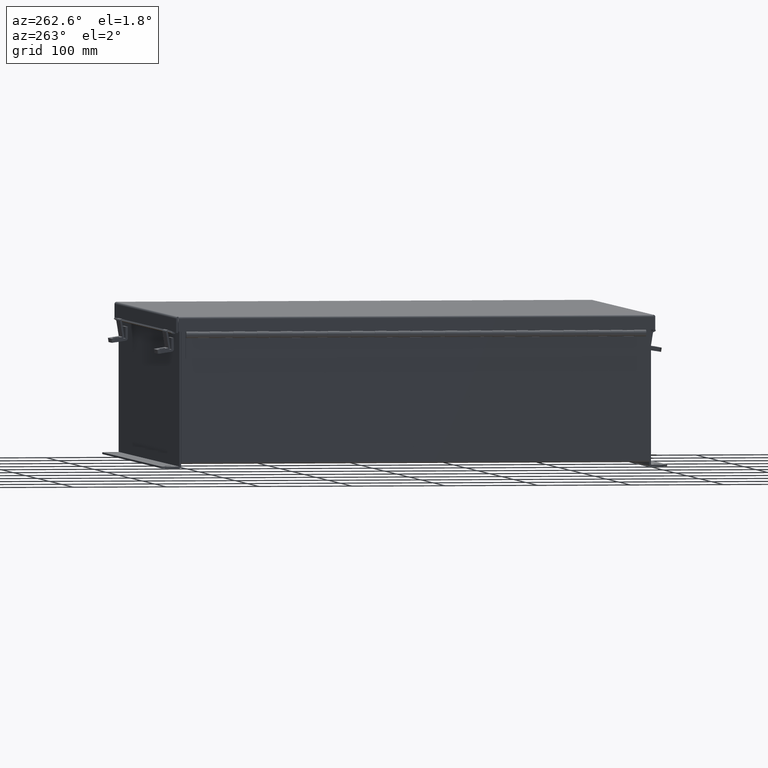
[diagram: clean part render]
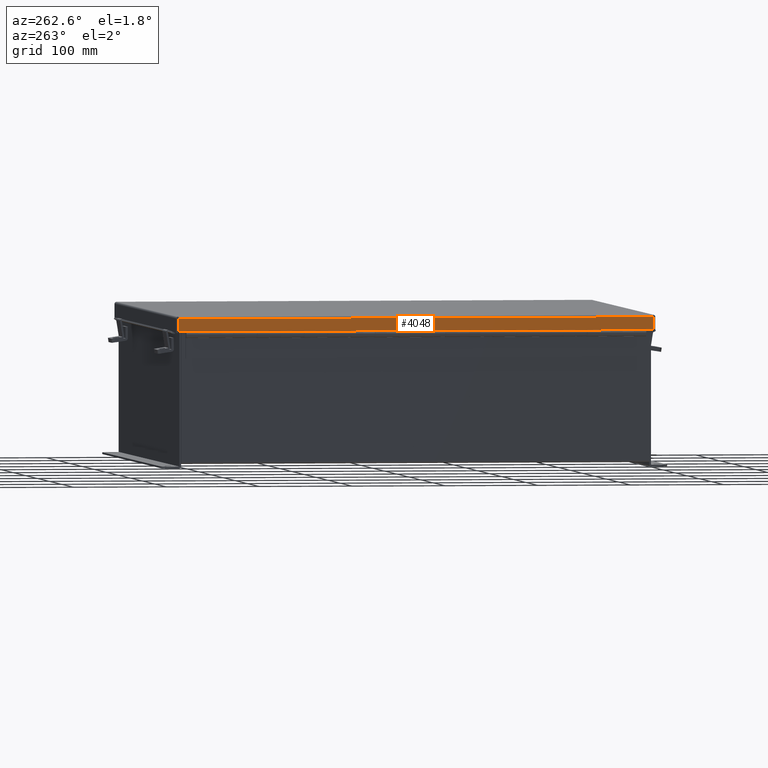
[diagram: same view with one face highlighted and labeled with its STEP entity id]
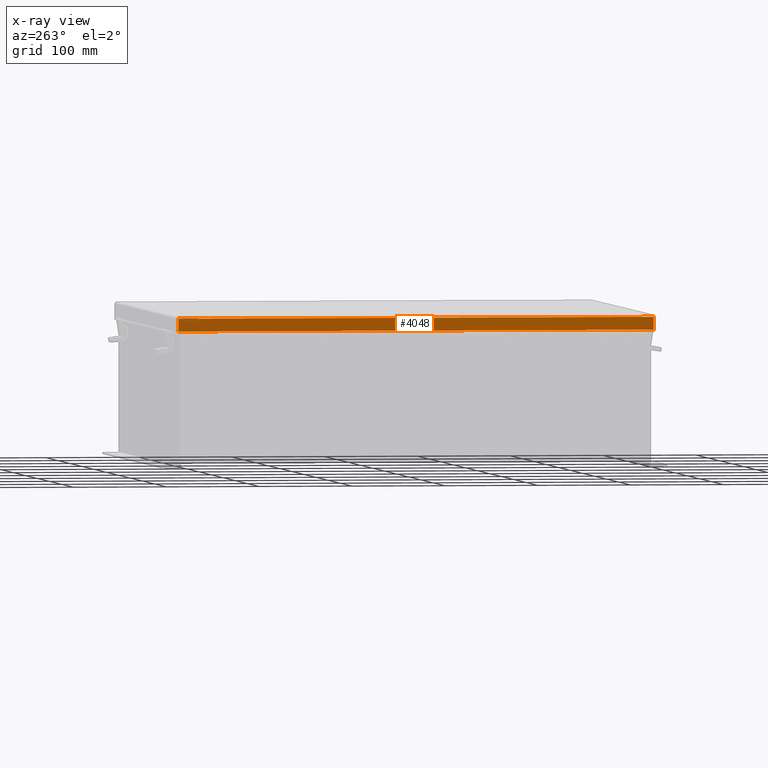
[diagram: x-ray of the same camera — body ghosted, the highlighted face saturated]
A machine part, auxiliary view. The second image highlights one B-rep face of the part: STEP entity #4048.
The next image is the same camera in x-ray: the body ghosted, the highlighted face saturated — about 0% of this face is hidden behind the body in this view.
In plain terms, the highlighted planar face has unit normal (1, -0, -0).
Its self-contained STEP definition (entity closure, byte-faithful):
#694 = VERTEX_POINT ( 'NONE', #15220 ) ;
#1511 = DIRECTION ( 'NONE',  ( -2.258600338820354400E-033, -1.000000000000000000, -0.0000000000000000000 ) ) ;
#2969 = DIRECTION ( 'NONE',  ( -2.258600338820354400E-033, -1.000000000000000000, 0.0000000000000000000 ) ) ;
#4048 = ADVANCED_FACE ( 'NONE', ( #14134 ), #21678, .F. ) ;
#5093 = LINE ( 'NONE', #21636, #10236 ) ;
#5167 = VECTOR ( 'NONE', #11262, 39.37007874015748100 ) ;
#5234 = EDGE_CURVE ( 'NONE', #694, #5845, #9756, .T. ) ;
#5845 = VERTEX_POINT ( 'NONE', #15482 ) ;
#5919 = CARTESIAN_POINT ( 'NONE',  ( 10.15625000000000200, -10.07447893218815200, 0.01300000000000010700 ) ) ;
#6645 = CARTESIAN_POINT ( 'NONE',  ( 10.15625000000000200, 0.0000000000000000000, -4.043135030623109600E-014 ) ) ;
#7016 = ORIENTED_EDGE ( 'NONE', *, *, #20114, .F. ) ;
#7173 = VECTOR ( 'NONE', #2969, 39.37007874015748100 ) ;
#9270 = DIRECTION ( 'NONE',  ( 3.971430846686188400E-015, 0.0000000000000000000, 1.000000000000000000 ) ) ;
#9600 = DIRECTION ( 'NONE',  ( 3.971430846686188400E-015, -0.0000000000000000000, 1.000000000000000000 ) ) ;
#9756 = LINE ( 'NONE', #11548, #5167 ) ;
#10236 = VECTOR ( 'NONE', #9600, 39.37007874015748100 ) ;
#10498 = VERTEX_POINT ( 'NONE', #18839 ) ;
#11262 = DIRECTION ( 'NONE',  ( 3.971430846686188400E-015, 0.0000000000000000000, 1.000000000000000000 ) ) ;
#11548 = CARTESIAN_POINT ( 'NONE',  ( 10.15625000000000200, 10.07447893218811800, -4.043135030623109600E-014 ) ) ;
#13595 = CARTESIAN_POINT ( 'NONE',  ( 10.15625000000000200, -10.15625000000001600, 0.01300000000000775700 ) ) ;
#13631 = ORIENTED_EDGE ( 'NONE', *, *, #17639, .T. ) ;
#14134 = FACE_OUTER_BOUND ( 'NONE', #20127, .T. ) ;
#14160 = DIRECTION ( 'NONE',  ( -1.000000000000000000, -1.157229917429806600E-033, 3.971430846686188400E-015 ) ) ;
#14362 = AXIS2_PLACEMENT_3D ( 'NONE', #6645, #14160, #9270 ) ;
#14507 = ORIENTED_EDGE ( 'NONE', *, *, #5234, .T. ) ;
#15121 = CARTESIAN_POINT ( 'NONE',  ( 10.15625000000000400, 0.0000000000000000000, 0.5502999999999999000 ) ) ;
#15220 = CARTESIAN_POINT ( 'NONE',  ( 10.15625000000000200, 10.07447893218811600, 0.01300000000000010700 ) ) ;
#15226 = EDGE_CURVE ( 'NONE', #16837, #10498, #5093, .T. ) ;
#15482 = CARTESIAN_POINT ( 'NONE',  ( 10.15625000000000400, 10.07447893218811600, 0.5502999999999999000 ) ) ;
#15784 = VECTOR ( 'NONE', #1511, 39.37007874015748100 ) ;
#16837 = VERTEX_POINT ( 'NONE', #5919 ) ;
#17639 = EDGE_CURVE ( 'NONE', #5845, #10498, #19848, .T. ) ;
#18839 = CARTESIAN_POINT ( 'NONE',  ( 10.15625000000000400, -10.07447893218814800, 0.5503000000000010100 ) ) ;
#19848 = LINE ( 'NONE', #15121, #7173 ) ;
#20114 = EDGE_CURVE ( 'NONE', #694, #16837, #20376, .T. ) ;
#20127 = EDGE_LOOP ( 'NONE', ( #7016, #14507, #13631, #20776 ) ) ;
#20376 = LINE ( 'NONE', #13595, #15784 ) ;
#20776 = ORIENTED_EDGE ( 'NONE', *, *, #15226, .F. ) ;
#21636 = CARTESIAN_POINT ( 'NONE',  ( 10.15625000000000200, -10.07447893218814800, 0.0000000000000000000 ) ) ;
#21678 = PLANE ( 'NONE',  #14362 ) ;